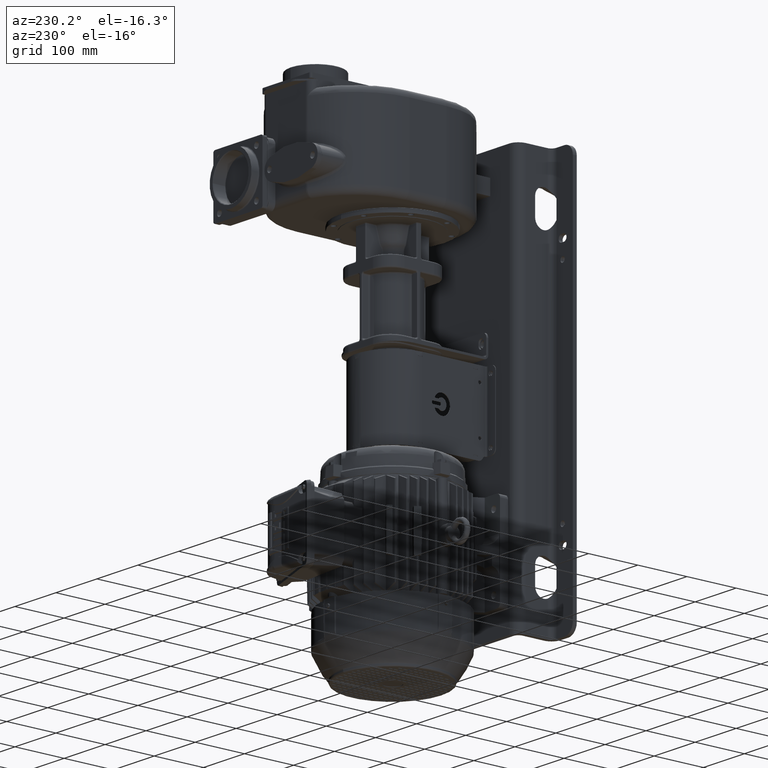
[diagram: clean part render]
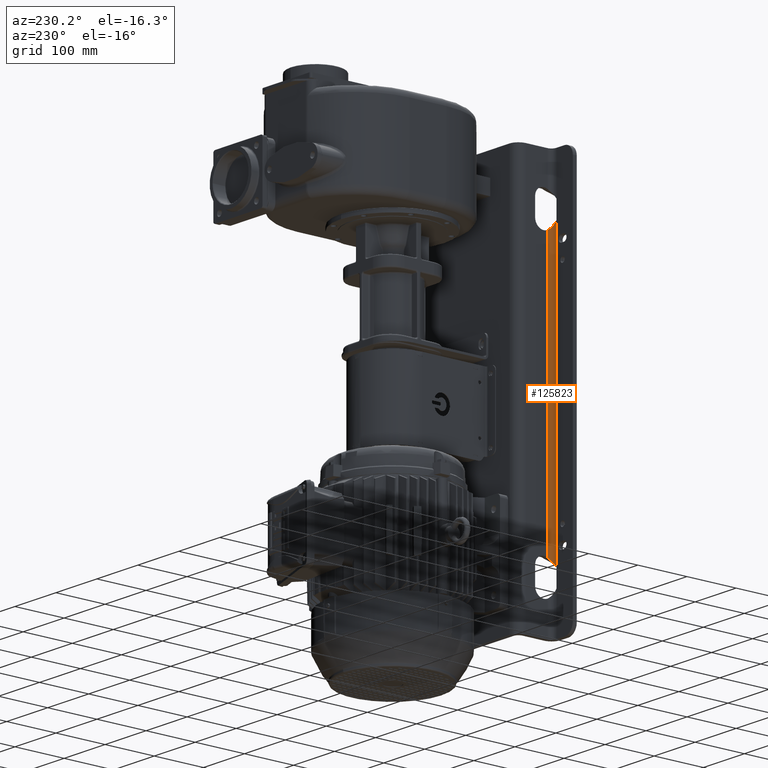
[diagram: same view with one face highlighted and labeled with its STEP entity id]
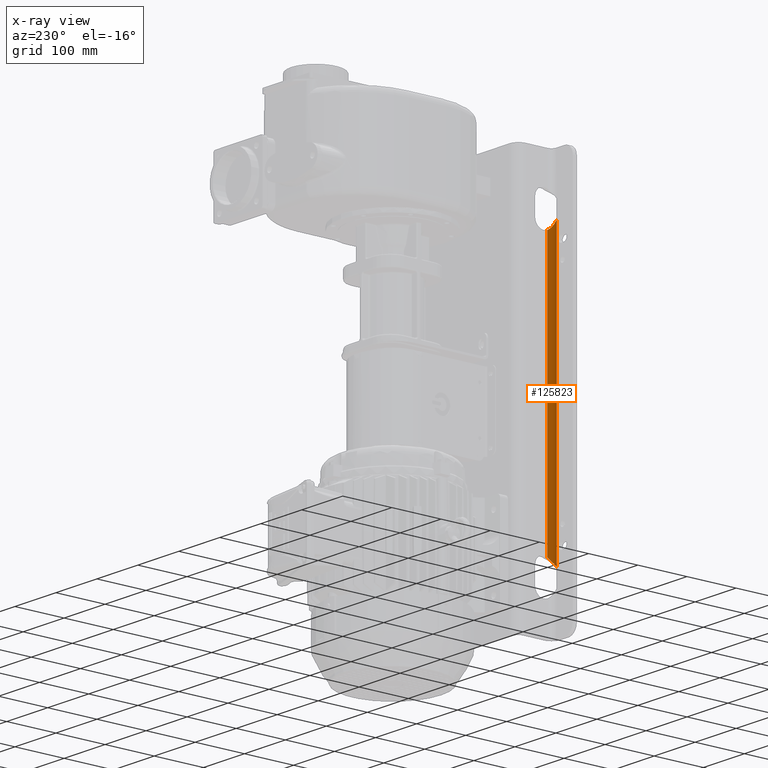
[diagram: x-ray of the same camera — body ghosted, the highlighted face saturated]
A machine part, auxiliary view. The second image highlights one B-rep face of the part: STEP entity #125823.
The next image is the same camera in x-ray: the body ghosted, the highlighted face saturated — about 0% of this face is hidden behind the body in this view.
In plain terms, the highlighted cylindrical surface (edge-blend (fillet) strip) has radius 10 mm, axis along (0, 0, -1).
Its self-contained STEP definition (entity closure, byte-faithful):
#45364=DIRECTION('',(0.E0,0.E0,-1.E0));
#45365=VECTOR('',#45364,5.333772233983E2);
#45366=CARTESIAN_POINT('',(-1.45E2,-6.2E1,-7.281138830084E1));
#45367=LINE('',#45366,#45365);
#45403=CARTESIAN_POINT('',(-1.55E2,-7.2E1,-5.7E1));
#45404=CARTESIAN_POINT('',(-1.548613616507E2,-7.2E1,-5.718340129720E1));
#45405=CARTESIAN_POINT('',(-1.545843286428E2,-7.199423731788E1,
-5.754988041617E1));
#45406=CARTESIAN_POINT('',(-1.541696327291E2,-7.196834768073E1,
-5.809877711784E1));
#45407=CARTESIAN_POINT('',(-1.537570574809E2,-7.192533788086E1,
-5.864547749109E1));
#45408=CARTESIAN_POINT('',(-1.533474840555E2,-7.186540089904E1,
-5.918911064218E1));
#45409=CARTESIAN_POINT('',(-1.529419908983E2,-7.178882868078E1,
-5.972853858130E1));
#45410=CARTESIAN_POINT('',(-1.525414296788E2,-7.169595426550E1,
-6.026292722643E1));
#45411=CARTESIAN_POINT('',(-1.521468723119E2,-7.158724289022E1,
-6.079111860489E1));
#45412=CARTESIAN_POINT('',(-1.517589717026E2,-7.146312328741E1,
-6.131249432464E1));
#45413=CARTESIAN_POINT('',(-1.513786797340E2,-7.132418155452E1,
-6.182601167799E1));
#45414=CARTESIAN_POINT('',(-1.510065395212E2,-7.117092554805E1,
-6.233121009321E1));
#45415=CARTESIAN_POINT('',(-1.506435193563E2,-7.100410409216E1,
-6.282703557267E1));
#45416=CARTESIAN_POINT('',(-1.502900300409E2,-7.082429489550E1,
-6.331313989518E1));
#45417=CARTESIAN_POINT('',(-1.499467994080E2,-7.063228128447E1,
-6.378869126017E1));
#45418=CARTESIAN_POINT('',(-1.496141770928E2,-7.042871061922E1,
-6.425334002267E1));
#45419=CARTESIAN_POINT('',(-1.492925667049E2,-7.021428836544E1,
-6.470672350378E1));
#45420=CARTESIAN_POINT('',(-1.489823806507E2,-6.998978608718E1,
-6.514842304813E1));
#45421=CARTESIAN_POINT('',(-1.486837630072E2,-6.975581204198E1,
-6.557837588348E1));
#45422=CARTESIAN_POINT('',(-1.483972412473E2,-6.951332460034E1,
-6.599593756602E1));
#45423=CARTESIAN_POINT('',(-1.481228368165E2,-6.926292871092E1,
-6.640115747565E1));
#45424=CARTESIAN_POINT('',(-1.478607548492E2,-6.900540153343E1,
-6.679377264552E1));
#45425=CARTESIAN_POINT('',(-1.476111619999E2,-6.874155503890E1,
-6.717354672459E1));
#45426=CARTESIAN_POINT('',(-1.473738179187E2,-6.847177737962E1,
-6.754085755003E1));
#45427=CARTESIAN_POINT('',(-1.471487916E2,-6.819678566949E1,-6.789561555411E1));
#45428=CARTESIAN_POINT('',(-1.469358895496E2,-6.791700084079E1,
-6.823814869719E1));
#45429=CARTESIAN_POINT('',(-1.467350324072E2,-6.763295522984E1,
-6.856864316097E1));
#45430=CARTESIAN_POINT('',(-1.465463512590E2,-6.734553645167E1,
-6.888686963426E1));
#45431=CARTESIAN_POINT('',(-1.463696473872E2,-6.705520459794E1,
-6.919308764987E1));
#45432=CARTESIAN_POINT('',(-1.462046882673E2,-6.676232291022E1,
-6.948759692120E1));
#45433=CARTESIAN_POINT('',(-1.460513884751E2,-6.646752028102E1,
-6.977040658491E1));
#45434=CARTESIAN_POINT('',(-1.459094668319E2,-6.617107257049E1,
-7.004184916168E1));
#45435=CARTESIAN_POINT('',(-1.457786397416E2,-6.587316863029E1,
-7.030237508488E1));
#45436=CARTESIAN_POINT('',(-1.456587995146E2,-6.557437212290E1,
-7.055207512949E1));
#45437=CARTESIAN_POINT('',(-1.455497539334E2,-6.527511049302E1,
-7.079115851289E1));
#45438=CARTESIAN_POINT('',(-1.454511354819E2,-6.497524780587E1,
-7.102023577663E1));
#45439=CARTESIAN_POINT('',(-1.453628072027E2,-6.467522088484E1,
-7.123942341633E1));
#45440=CARTESIAN_POINT('',(-1.452845947832E2,-6.437541995456E1,
-7.144888343607E1));
#45441=CARTESIAN_POINT('',(-1.452162291180E2,-6.407583021318E1,
-7.164904091255E1));
#45442=CARTESIAN_POINT('',(-1.451574889467E2,-6.377644986647E1,
-7.184032560152E1));
#45443=CARTESIAN_POINT('',(-1.451082464640E2,-6.347767728900E1,
-7.202287331176E1));
#45444=CARTESIAN_POINT('',(-1.450683406483E2,-6.317984815811E1,
-7.219685708273E1));
#45445=CARTESIAN_POINT('',(-1.450375651428E2,-6.288284511884E1,
-7.236268354902E1));
#45446=CARTESIAN_POINT('',(-1.450157845680E2,-6.258701237690E1,
-7.252046776197E1));
#45447=CARTESIAN_POINT('',(-1.450028400926E2,-6.229252695141E1,
-7.267041197845E1));
#45448=CARTESIAN_POINT('',(-1.45E2,-6.209729154901E1,-7.276523886705E1));
#45449=CARTESIAN_POINT('',(-1.45E2,-6.2E1,-7.281138830084E1));
#45451=DIRECTION('',(0.E0,0.E0,-1.E0));
#45452=VECTOR('',#45451,5.65E2);
#45453=CARTESIAN_POINT('',(-1.55E2,-7.2E1,-5.7E1));
#45454=LINE('',#45453,#45452);
#45455=CARTESIAN_POINT('',(-1.45E2,-6.2E1,-6.061886116992E2));
#45456=CARTESIAN_POINT('',(-1.45E2,-6.209727149981E1,-6.062347516228E2));
#45457=CARTESIAN_POINT('',(-1.450028388807E2,-6.229247448116E1,
-6.063295638671E2));
#45458=CARTESIAN_POINT('',(-1.450157803944E2,-6.258693879188E1,
-6.064795015581E2));
#45459=CARTESIAN_POINT('',(-1.450375579298E2,-6.288276488628E1,
-6.066372874121E2));
#45460=CARTESIAN_POINT('',(-1.450683338050E2,-6.317979292099E1,
-6.068031326577E2));
#45461=CARTESIAN_POINT('',(-1.451082419979E2,-6.347764981917E1,
-6.069771355682E2));
#45462=CARTESIAN_POINT('',(-1.451574911473E2,-6.377646435513E1,
-6.071597082012E2));
#45463=CARTESIAN_POINT('',(-1.452162403318E2,-6.407588586477E1,
-6.073510135257E2));
#45464=CARTESIAN_POINT('',(-1.452846208640E2,-6.437552749784E1,
-6.075511940789E2));
#45465=CARTESIAN_POINT('',(-1.453628326974E2,-6.467531175785E1,
-6.077606262454E2));
#45466=CARTESIAN_POINT('',(-1.454511592341E2,-6.497532354266E1,
-6.079797895060E2));
#45467=CARTESIAN_POINT('',(-1.455497737629E2,-6.527516697911E1,
-6.082088458055E2));
#45468=CARTESIAN_POINT('',(-1.456588106914E2,-6.557440004429E1,
-6.084479088795E2));
#45469=CARTESIAN_POINT('',(-1.457786320834E2,-6.587314907773E1,
-6.086975786663E2));
#45470=CARTESIAN_POINT('',(-1.459094479792E2,-6.617103166734E1,
-6.089580987090E2));
#45471=CARTESIAN_POINT('',(-1.460513787427E2,-6.646750122078E1,
-6.092295721298E2));
#45472=CARTESIAN_POINT('',(-1.462046814426E2,-6.676231066319E1,
-6.095123949911E2));
#45473=CARTESIAN_POINT('',(-1.463696589462E2,-6.705522561006E1,
-6.098069435311E2));
#45474=CARTESIAN_POINT('',(-1.465463898224E2,-6.734559775120E1,
-6.101132101643E2));
#45475=CARTESIAN_POINT('',(-1.467350622575E2,-6.763299840160E1,
-6.104314208316E2));
#45476=CARTESIAN_POINT('',(-1.469359135864E2,-6.791703385569E1,
-6.107619033641E2));
#45477=CARTESIAN_POINT('',(-1.471488279003E2,-6.819683159962E1,
-6.111044509634E2));
#45478=CARTESIAN_POINT('',(-1.473738392227E2,-6.847180202511E1,
-6.114591815366E2));
#45479=CARTESIAN_POINT('',(-1.476111778847E2,-6.874157241455E1,
-6.118264822048E2));
#45480=CARTESIAN_POINT('',(-1.478607647235E2,-6.900541118328E1,
-6.122062443964E2));
#45481=CARTESIAN_POINT('',(-1.481228285554E2,-6.926292074991E1,
-6.125988293313E2));
#45482=CARTESIAN_POINT('',(-1.483972369275E2,-6.951332076811E1,
-6.130040524326E2));
#45483=CARTESIAN_POINT('',(-1.486837434920E2,-6.975579574186E1,
-6.134215930202E2));
#45484=CARTESIAN_POINT('',(-1.489823497851E2,-6.998976290579E1,
-6.138515338246E2));
#45485=CARTESIAN_POINT('',(-1.492925453936E2,-7.021427366923E1,
-6.142932518015E2));
#45486=CARTESIAN_POINT('',(-1.496141588757E2,-7.042869926388E1,
-6.147466417244E2));
#45487=CARTESIAN_POINT('',(-1.499468050274E2,-7.063228482030E1,
-6.152113190639E2));
#45488=CARTESIAN_POINT('',(-1.502900348125E2,-7.082429739401E1,
-6.156868559187E2));
#45489=CARTESIAN_POINT('',(-1.506435256971E2,-7.100410713132E1,
-6.161729564166E2));
#45490=CARTESIAN_POINT('',(-1.510065373381E2,-7.117092441523E1,
-6.166687739161E2));
#45491=CARTESIAN_POINT('',(-1.513786697915E2,-7.132417767653E1,
-6.171739718362E2));
#45492=CARTESIAN_POINT('',(-1.517589665998E2,-7.146312165876E1,
-6.176875017627E2));
#45493=CARTESIAN_POINT('',(-1.521468762220E2,-7.158724422735E1,
-6.182088886671E2));
#45494=CARTESIAN_POINT('',(-1.525414438462E2,-7.169595789683E1,
-6.187370920009E2));
#45495=CARTESIAN_POINT('',(-1.529420008136E2,-7.178883069109E1,
-6.192714742765E2));
#45496=CARTESIAN_POINT('',(-1.533474916137E2,-7.186540213081E1,
-6.198108995672E2));
#45497=CARTESIAN_POINT('',(-1.537570620874E2,-7.192533843910E1,
-6.203545284453E2));
#45498=CARTESIAN_POINT('',(-1.541696377556E2,-7.196834809896E1,
-6.209012291028E2));
#45499=CARTESIAN_POINT('',(-1.545843318630E2,-7.199423741321E1,
-6.214501235743E2));
#45500=CARTESIAN_POINT('',(-1.548613628385E2,-7.2E1,-6.218166002741E2));
#45501=CARTESIAN_POINT('',(-1.55E2,-7.2E1,-6.22E2));
#68847=VERTEX_POINT('',#45403);
#68848=VERTEX_POINT('',#45449);
#68854=CARTESIAN_POINT('',(-1.55E2,-7.2E1,-6.22E2));
#68855=VERTEX_POINT('',#68854);
#68856=VERTEX_POINT('',#45455);
#125810=CARTESIAN_POINT('',(-1.55E2,-6.2E1,6.05E1));
#125811=DIRECTION('',(0.E0,0.E0,-1.E0));
#125812=DIRECTION('',(-1.E0,0.E0,0.E0));
#125813=AXIS2_PLACEMENT_3D('',#125810,#125811,#125812);
#125814=CYLINDRICAL_SURFACE('',#125813,1.E1);
#125815=ORIENTED_EDGE('',*,*,#125800,.F.);
#125817=ORIENTED_EDGE('',*,*,#125816,.T.);
#125819=ORIENTED_EDGE('',*,*,#125818,.F.);
#125820=ORIENTED_EDGE('',*,*,#125680,.F.);
#125821=EDGE_LOOP('',(#125815,#125817,#125819,#125820));
#125822=FACE_OUTER_BOUND('',#125821,.F.);
#125823=ADVANCED_FACE('',(#125822),#125814,.F.);
#45450=B_SPLINE_CURVE_WITH_KNOTS('',3,(#45403,#45404,#45405,#45406,#45407,
#45408,#45409,#45410,#45411,#45412,#45413,#45414,#45415,#45416,#45417,#45418,
#45419,#45420,#45421,#45422,#45423,#45424,#45425,#45426,#45427,#45428,#45429,
#45430,#45431,#45432,#45433,#45434,#45435,#45436,#45437,#45438,#45439,#45440,
#45441,#45442,#45443,#45444,#45445,#45446,#45447,#45448,#45449),.UNSPECIFIED.,
.F.,.F.,(4,1,1,1,1,1,1,1,1,1,1,1,1,1,1,1,1,1,1,1,1,1,1,1,1,1,1,1,1,1,1,1,1,1,1,
1,1,1,1,1,1,1,1,1,4),(0.E0,2.272727272727E-2,4.545454545455E-2,
6.818181818182E-2,9.090909090909E-2,1.136363636364E-1,1.363636363636E-1,
1.590909090909E-1,1.818181818182E-1,2.045454545455E-1,2.272727272727E-1,2.5E-1,
2.727272727273E-1,2.954545454545E-1,3.181818181818E-1,3.409090909091E-1,
3.636363636364E-1,3.863636363636E-1,4.090909090909E-1,4.318181818182E-1,
4.545454545455E-1,4.772727272727E-1,5.E-1,5.227272727273E-1,5.454545454545E-1,
5.681818181818E-1,5.909090909091E-1,6.136363636364E-1,6.363636363636E-1,
6.590909090909E-1,6.818181818182E-1,7.045454545455E-1,7.272727272727E-1,7.5E-1,
7.727272727273E-1,7.954545454545E-1,8.181818181818E-1,8.409090909091E-1,
8.636363636364E-1,8.863636363636E-1,9.090909090909E-1,9.318181818182E-1,
9.545454545455E-1,9.772727272727E-1,1.E0),.UNSPECIFIED.);
#45502=B_SPLINE_CURVE_WITH_KNOTS('',3,(#45455,#45456,#45457,#45458,#45459,
#45460,#45461,#45462,#45463,#45464,#45465,#45466,#45467,#45468,#45469,#45470,
#45471,#45472,#45473,#45474,#45475,#45476,#45477,#45478,#45479,#45480,#45481,
#45482,#45483,#45484,#45485,#45486,#45487,#45488,#45489,#45490,#45491,#45492,
#45493,#45494,#45495,#45496,#45497,#45498,#45499,#45500,#45501),.UNSPECIFIED.,
.F.,.F.,(4,1,1,1,1,1,1,1,1,1,1,1,1,1,1,1,1,1,1,1,1,1,1,1,1,1,1,1,1,1,1,1,1,1,1,
1,1,1,1,1,1,1,1,1,4),(0.E0,2.272727272727E-2,4.545454545455E-2,
6.818181818182E-2,9.090909090909E-2,1.136363636364E-1,1.363636363636E-1,
1.590909090909E-1,1.818181818182E-1,2.045454545455E-1,2.272727272727E-1,2.5E-1,
2.727272727273E-1,2.954545454545E-1,3.181818181818E-1,3.409090909091E-1,
3.636363636364E-1,3.863636363636E-1,4.090909090909E-1,4.318181818182E-1,
4.545454545455E-1,4.772727272727E-1,5.E-1,5.227272727273E-1,5.454545454545E-1,
5.681818181818E-1,5.909090909091E-1,6.136363636364E-1,6.363636363636E-1,
6.590909090909E-1,6.818181818182E-1,7.045454545455E-1,7.272727272727E-1,7.5E-1,
7.727272727273E-1,7.954545454545E-1,8.181818181818E-1,8.409090909091E-1,
8.636363636364E-1,8.863636363636E-1,9.090909090909E-1,9.318181818182E-1,
9.545454545455E-1,9.772727272727E-1,1.E0),.UNSPECIFIED.);
#125680=EDGE_CURVE('',#68848,#68856,#45367,.T.);
#125800=EDGE_CURVE('',#68847,#68848,#45450,.T.);
#125816=EDGE_CURVE('',#68847,#68855,#45454,.T.);
#125818=EDGE_CURVE('',#68856,#68855,#45502,.T.);